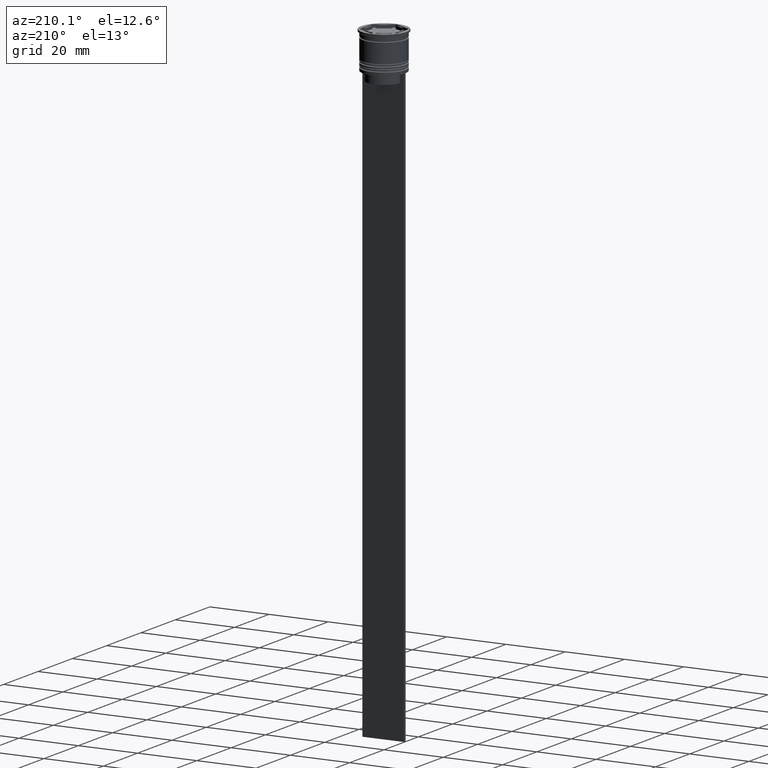
[diagram: clean part render]
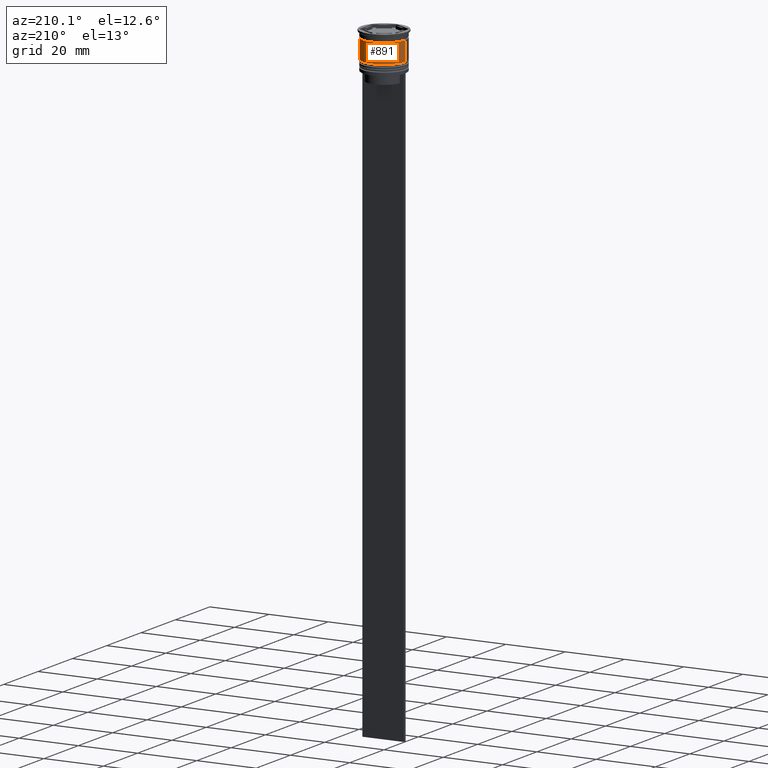
[diagram: same view with one face highlighted and labeled with its STEP entity id]
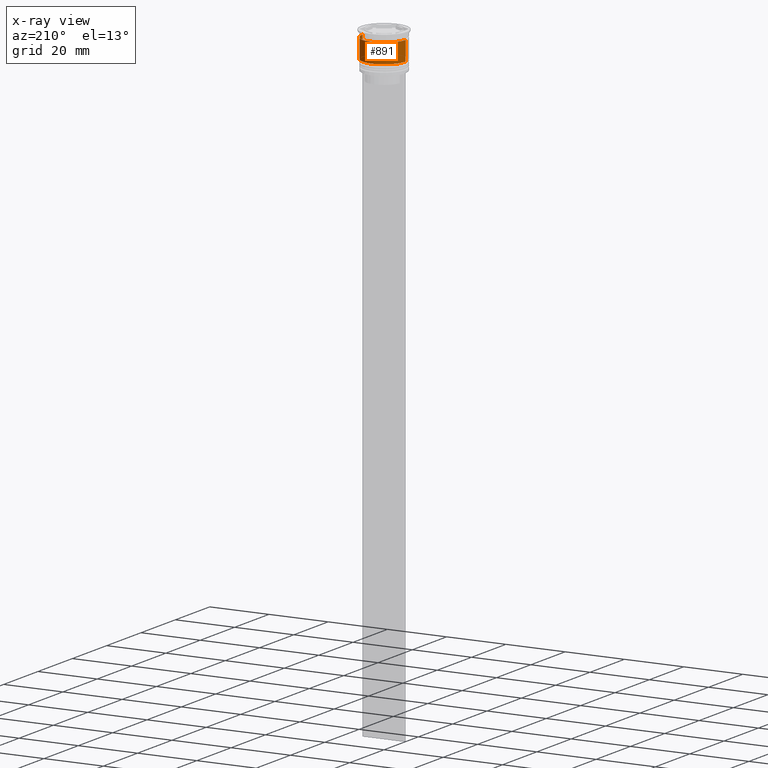
[diagram: x-ray of the same camera — body ghosted, the highlighted face saturated]
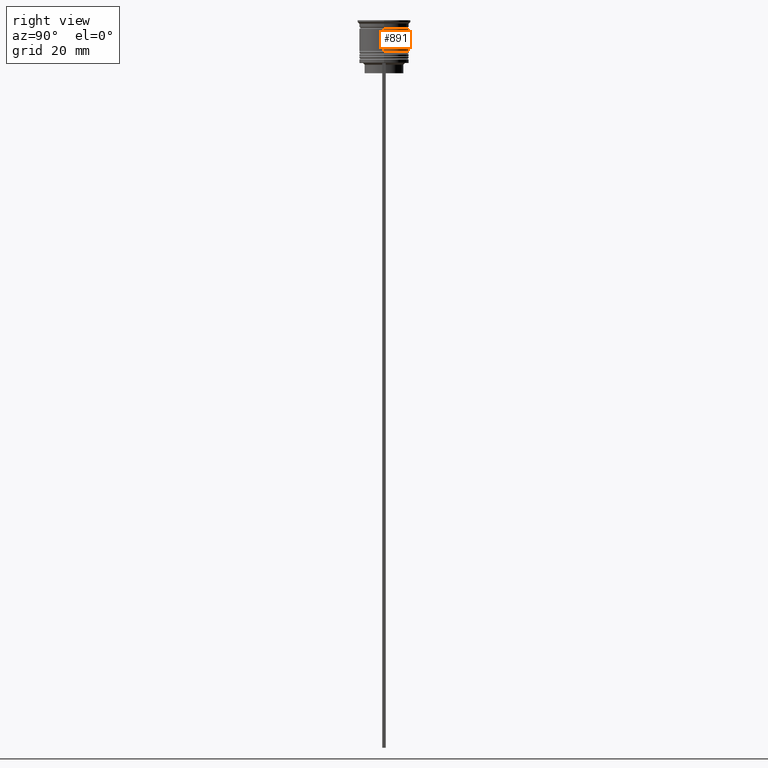
[diagram: same view with one face highlighted and labeled with its STEP entity id]
A machine part, auxiliary view. The second image highlights one B-rep face of the part: STEP entity #891.
The next image is the same camera in x-ray: the body ghosted, the highlighted face saturated — about 0% of this face is hidden behind the body in this view.
A second angle (right view) of the same face is appended — the face is thin or edge-on in the first view.
In plain terms, the highlighted cylindrical surface (edge-blend (fillet) strip) has radius 7.25 mm, axis along (-0, -0, 1).
Its self-contained STEP definition (entity closure, byte-faithful):
#15 = DIRECTION ( 'NONE',  ( 1.000000000000000000, 0.000000000000000000, 0.000000000000000000 ) ) ;
#44 = VECTOR ( 'NONE', #480, 1000.000000000000000 ) ;
#89 = CARTESIAN_POINT ( 'NONE',  ( -7.250000000000000888, 8.878689293818312046E-16, -9.000000000000001776 ) ) ;
#137 = CARTESIAN_POINT ( 'NONE',  ( 0.000000000000000000, 0.000000000000000000, -9.000000000000001776 ) ) ;
#154 = CIRCLE ( 'NONE', #1519, 7.249999999999997335 ) ;
#331 = EDGE_CURVE ( 'NONE', #874, #361, #497, .T. ) ;
#361 = VERTEX_POINT ( 'NONE', #89 ) ;
#452 = ORIENTED_EDGE ( 'NONE', *, *, #918, .T. ) ;
#467 = ORIENTED_EDGE ( 'NONE', *, *, #331, .T. ) ;
#480 = DIRECTION ( 'NONE',  ( -0.000000000000000000, -0.000000000000000000, 1.000000000000000000 ) ) ;
#497 = CIRCLE ( 'NONE', #1022, 7.250000000000000888 ) ;
#504 = EDGE_CURVE ( 'NONE', #1518, #935, #154, .T. ) ;
#518 = CYLINDRICAL_SURFACE ( 'NONE', #1898, 7.249999999999999112 ) ;
#520 = CARTESIAN_POINT ( 'NONE',  ( 0.000000000000000000, 0.000000000000000000, -2.500000000000000444 ) ) ;
#681 = FACE_OUTER_BOUND ( 'NONE', #1382, .T. ) ;
#689 = LINE ( 'NONE', #1375, #44 ) ;
#874 = VERTEX_POINT ( 'NONE', #1594 ) ;
#876 = VECTOR ( 'NONE', #1405, 1000.000000000000000 ) ;
#891 = ADVANCED_FACE ( 'NONE', ( #681 ), #518, .T. ) ;
#918 = EDGE_CURVE ( 'NONE', #361, #935, #1074, .T. ) ;
#935 = VERTEX_POINT ( 'NONE', #2319 ) ;
#1002 = DIRECTION ( 'NONE',  ( -0.000000000000000000, -0.000000000000000000, 1.000000000000000000 ) ) ;
#1022 = AXIS2_PLACEMENT_3D ( 'NONE', #137, #1002, #1726 ) ;
#1046 = CARTESIAN_POINT ( 'NONE',  ( -7.249999999999999112, 8.878689293818310074E-16, 0.000000000000000000 ) ) ;
#1074 = LINE ( 'NONE', #1046, #876 ) ;
#1208 = EDGE_CURVE ( 'NONE', #874, #1518, #689, .T. ) ;
#1331 = ORIENTED_EDGE ( 'NONE', *, *, #1208, .F. ) ;
#1375 = CARTESIAN_POINT ( 'NONE',  ( 7.249999999999999112, 0.000000000000000000, 0.000000000000000000 ) ) ;
#1382 = EDGE_LOOP ( 'NONE', ( #467, #452, #1983, #1331 ) ) ;
#1405 = DIRECTION ( 'NONE',  ( -0.000000000000000000, -0.000000000000000000, 1.000000000000000000 ) ) ;
#1518 = VERTEX_POINT ( 'NONE', #2202 ) ;
#1519 = AXIS2_PLACEMENT_3D ( 'NONE', #520, #1645, #15 ) ;
#1580 = CARTESIAN_POINT ( 'NONE',  ( 0.000000000000000000, 0.000000000000000000, 0.000000000000000000 ) ) ;
#1594 = CARTESIAN_POINT ( 'NONE',  ( 7.250000000000000888, 0.000000000000000000, -9.000000000000001776 ) ) ;
#1645 = DIRECTION ( 'NONE',  ( -0.000000000000000000, -0.000000000000000000, 1.000000000000000000 ) ) ;
#1726 = DIRECTION ( 'NONE',  ( 1.000000000000000000, 0.000000000000000000, 0.000000000000000000 ) ) ;
#1791 = DIRECTION ( 'NONE',  ( -0.000000000000000000, -0.000000000000000000, 1.000000000000000000 ) ) ;
#1898 = AXIS2_PLACEMENT_3D ( 'NONE', #1580, #1791, #1993 ) ;
#1983 = ORIENTED_EDGE ( 'NONE', *, *, #504, .F. ) ;
#1993 = DIRECTION ( 'NONE',  ( 1.000000000000000000, 0.000000000000000000, 0.000000000000000000 ) ) ;
#2202 = CARTESIAN_POINT ( 'NONE',  ( 7.249999999999997335, 0.000000000000000000, -2.500000000000000444 ) ) ;
#2319 = CARTESIAN_POINT ( 'NONE',  ( -7.249999999999997335, 8.878689293818308102E-16, -2.500000000000000444 ) ) ;